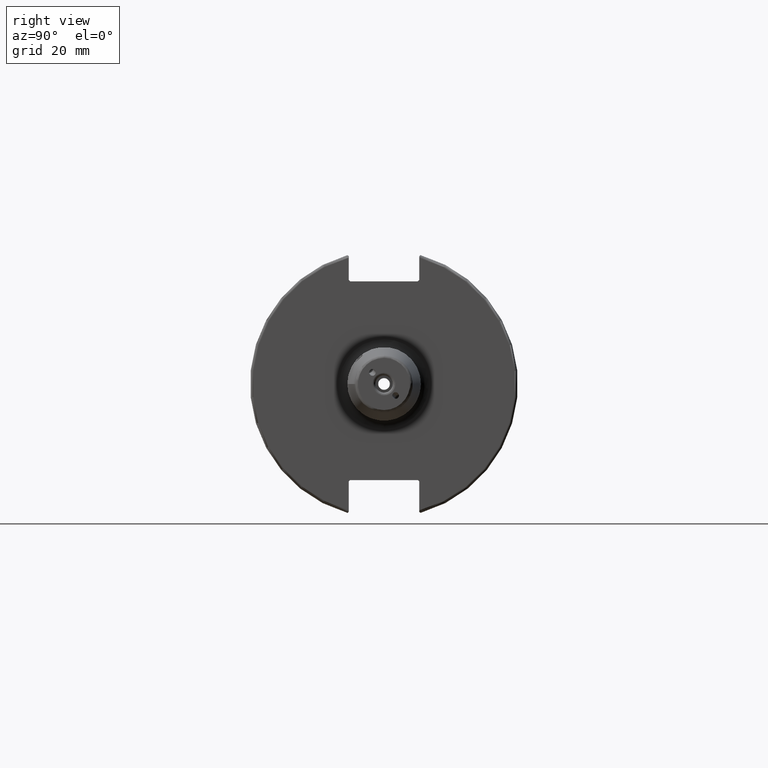
[diagram: clean part render]
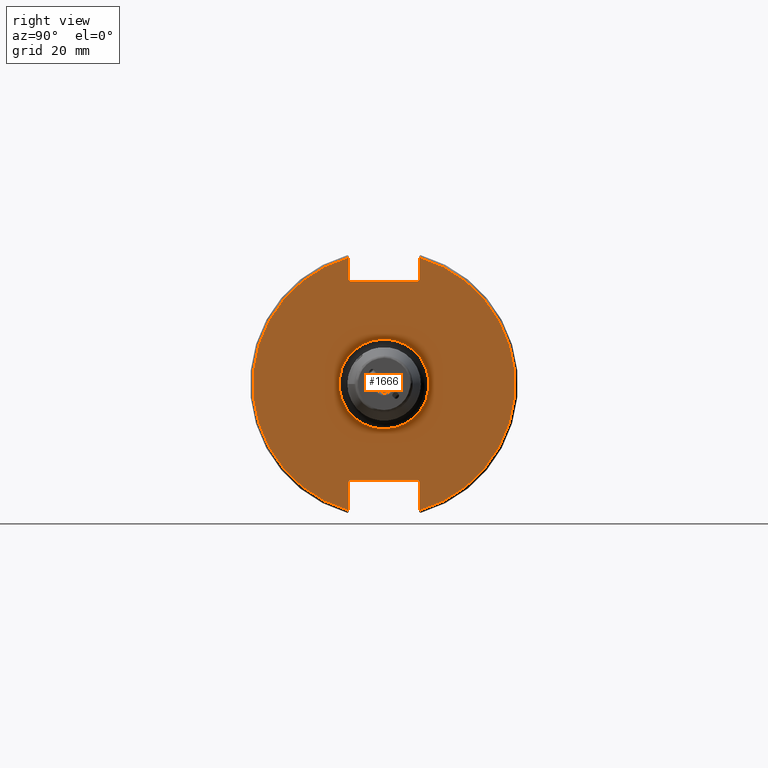
[diagram: same view with one face highlighted and labeled with its STEP entity id]
A machine part, right view. The second image highlights one B-rep face of the part: STEP entity #1666.
In plain terms, the highlighted planar face has unit normal (1, 0, 0).
Its self-contained STEP definition (entity closure, byte-faithful):
#35=FACE_BOUND('',#313,.T.);
#57=PLANE('',#1803);
#133=CIRCLE('',#1800,16.5);
#135=CIRCLE('',#1804,48.2125);
#136=CIRCLE('',#1805,48.2125);
#213=FACE_OUTER_BOUND('',#312,.T.);
#312=EDGE_LOOP('',(#1191,#1192,#1193,#1194,#1195,#1196,#1197,#1198,#1199,
#1200,#1201,#1202));
#313=EDGE_LOOP('',(#1203));
#479=LINE('',#2717,#580);
#480=LINE('',#2719,#581);
#481=LINE('',#2721,#582);
#482=LINE('',#2723,#583);
#483=LINE('',#2725,#584);
#484=LINE('',#2729,#585);
#485=LINE('',#2731,#586);
#486=LINE('',#2733,#587);
#487=LINE('',#2735,#588);
#488=LINE('',#2736,#589);
#580=VECTOR('',#2032,10.);
#581=VECTOR('',#2033,10.);
#582=VECTOR('',#2034,10.);
#583=VECTOR('',#2035,10.);
#584=VECTOR('',#2036,10.);
#585=VECTOR('',#2039,10.);
#586=VECTOR('',#2040,10.);
#587=VECTOR('',#2041,10.);
#588=VECTOR('',#2042,10.);
#589=VECTOR('',#2043,10.);
#706=VERTEX_POINT('',#2706);
#707=VERTEX_POINT('',#2713);
#708=VERTEX_POINT('',#2714);
#709=VERTEX_POINT('',#2716);
#710=VERTEX_POINT('',#2718);
#711=VERTEX_POINT('',#2720);
#712=VERTEX_POINT('',#2722);
#713=VERTEX_POINT('',#2724);
#714=VERTEX_POINT('',#2726);
#715=VERTEX_POINT('',#2728);
#716=VERTEX_POINT('',#2730);
#717=VERTEX_POINT('',#2732);
#718=VERTEX_POINT('',#2734);
#891=EDGE_CURVE('',#706,#706,#133,.T.);
#894=EDGE_CURVE('',#707,#708,#135,.T.);
#895=EDGE_CURVE('',#707,#709,#479,.T.);
#896=EDGE_CURVE('',#710,#709,#480,.T.);
#897=EDGE_CURVE('',#710,#711,#481,.T.);
#898=EDGE_CURVE('',#712,#711,#482,.T.);
#899=EDGE_CURVE('',#712,#713,#483,.T.);
#900=EDGE_CURVE('',#714,#713,#136,.T.);
#901=EDGE_CURVE('',#714,#715,#484,.T.);
#902=EDGE_CURVE('',#716,#715,#485,.T.);
#903=EDGE_CURVE('',#716,#717,#486,.T.);
#904=EDGE_CURVE('',#718,#717,#487,.T.);
#905=EDGE_CURVE('',#718,#708,#488,.T.);
#1191=ORIENTED_EDGE('',*,*,#894,.F.);
#1192=ORIENTED_EDGE('',*,*,#895,.T.);
#1193=ORIENTED_EDGE('',*,*,#896,.F.);
#1194=ORIENTED_EDGE('',*,*,#897,.T.);
#1195=ORIENTED_EDGE('',*,*,#898,.F.);
#1196=ORIENTED_EDGE('',*,*,#899,.T.);
#1197=ORIENTED_EDGE('',*,*,#900,.F.);
#1198=ORIENTED_EDGE('',*,*,#901,.T.);
#1199=ORIENTED_EDGE('',*,*,#902,.F.);
#1200=ORIENTED_EDGE('',*,*,#903,.T.);
#1201=ORIENTED_EDGE('',*,*,#904,.F.);
#1202=ORIENTED_EDGE('',*,*,#905,.T.);
#1203=ORIENTED_EDGE('',*,*,#891,.F.);
#1666=ADVANCED_FACE('',(#213,#35),#57,.T.);
#1800=AXIS2_PLACEMENT_3D('',#2708,#2021,#2022);
#1803=AXIS2_PLACEMENT_3D('',#2712,#2028,#2029);
#1804=AXIS2_PLACEMENT_3D('',#2715,#2030,#2031);
#1805=AXIS2_PLACEMENT_3D('',#2727,#2037,#2038);
#2021=DIRECTION('center_axis',(1.,0.,0.));
#2022=DIRECTION('ref_axis',(0.,-1.,-1.22464679914735E-16));
#2028=DIRECTION('center_axis',(1.,0.,0.));
#2029=DIRECTION('ref_axis',(0.,0.,-1.));
#2030=DIRECTION('center_axis',(-1.,0.,0.));
#2031=DIRECTION('ref_axis',(0.,1.,-6.12323399573677E-17));
#2032=DIRECTION('',(0.,0.,-1.));
#2033=DIRECTION('',(0.,0.707106781186549,0.707106781186546));
#2034=DIRECTION('',(0.,-1.,0.));
#2035=DIRECTION('',(0.,0.707106781186549,-0.707106781186546));
#2036=DIRECTION('',(0.,0.,1.));
#2037=DIRECTION('center_axis',(-1.,0.,0.));
#2038=DIRECTION('ref_axis',(0.,-1.,1.60812264967664E-16));
#2039=DIRECTION('',(0.,0.,1.));
#2040=DIRECTION('',(0.,-0.707106781186549,-0.707106781186546));
#2041=DIRECTION('',(0.,1.,0.));
#2042=DIRECTION('',(0.,-0.707106781186549,0.707106781186546));
#2043=DIRECTION('',(0.,0.,-1.));
#2706=CARTESIAN_POINT('',(19.05,-2.02066721859313E-15,-16.5));
#2708=CARTESIAN_POINT('Origin',(19.05,0.,0.));
#2712=CARTESIAN_POINT('Origin',(19.05,0.,0.));
#2713=CARTESIAN_POINT('',(19.05,12.95,46.4407434937254));
#2714=CARTESIAN_POINT('',(19.05,12.95,-46.4407434937254));
#2715=CARTESIAN_POINT('Origin',(19.05,0.,0.));
#2716=CARTESIAN_POINT('',(19.05,12.95,38.219));
#2717=CARTESIAN_POINT('',(19.05,12.95,18.8595));
#2718=CARTESIAN_POINT('',(19.05,12.45,37.719));
#2719=CARTESIAN_POINT('',(19.05,0.0327499999999836,25.30175));
#2720=CARTESIAN_POINT('',(19.05,-12.45,37.719));
#2721=CARTESIAN_POINT('',(19.05,0.,37.719));
#2722=CARTESIAN_POINT('',(19.05,-12.95,38.219));
#2723=CARTESIAN_POINT('',(19.05,-0.0327499999999817,25.30175));
#2724=CARTESIAN_POINT('',(19.05,-12.95,46.4407434937254));
#2725=CARTESIAN_POINT('',(19.05,-12.95,18.8595));
#2726=CARTESIAN_POINT('',(19.05,-12.95,-46.4407434937254));
#2727=CARTESIAN_POINT('Origin',(19.05,0.,0.));
#2728=CARTESIAN_POINT('',(19.05,-12.95,-35.806));
#2729=CARTESIAN_POINT('',(19.05,-12.95,-17.653));
#2730=CARTESIAN_POINT('',(19.05,-12.45,-35.306));
#2731=CARTESIAN_POINT('',(19.05,-0.635999999999989,-23.492));
#2732=CARTESIAN_POINT('',(19.05,12.45,-35.306));
#2733=CARTESIAN_POINT('',(19.05,-3.33066907387547E-15,-35.306));
#2734=CARTESIAN_POINT('',(19.05,12.95,-35.806));
#2735=CARTESIAN_POINT('',(19.05,0.635999999999982,-23.492));
#2736=CARTESIAN_POINT('',(19.05,12.95,-17.653));